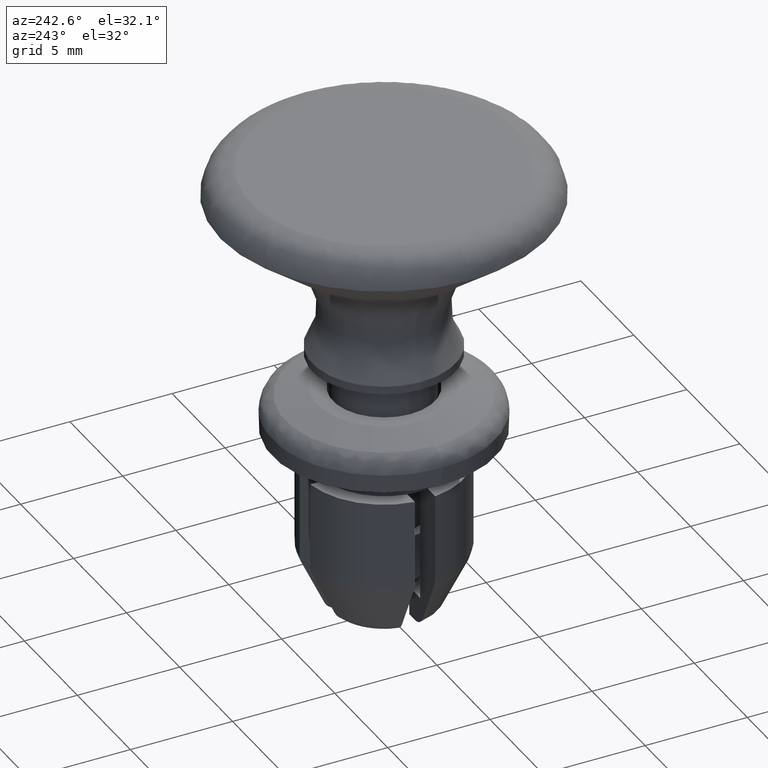
[diagram: clean part render]
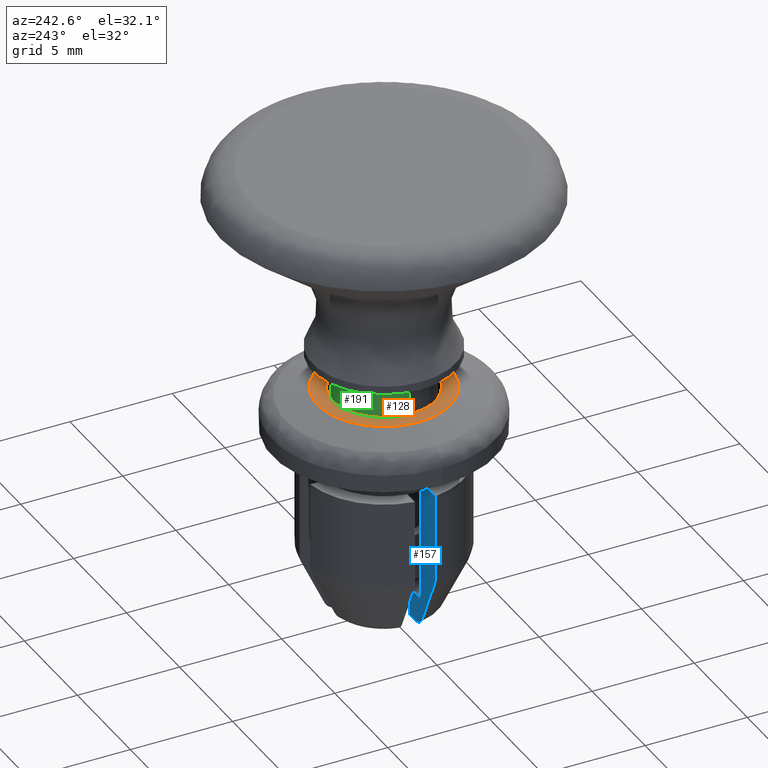
[diagram: same view with three faces highlighted in distinct colors, each labeled with its STEP entity id]
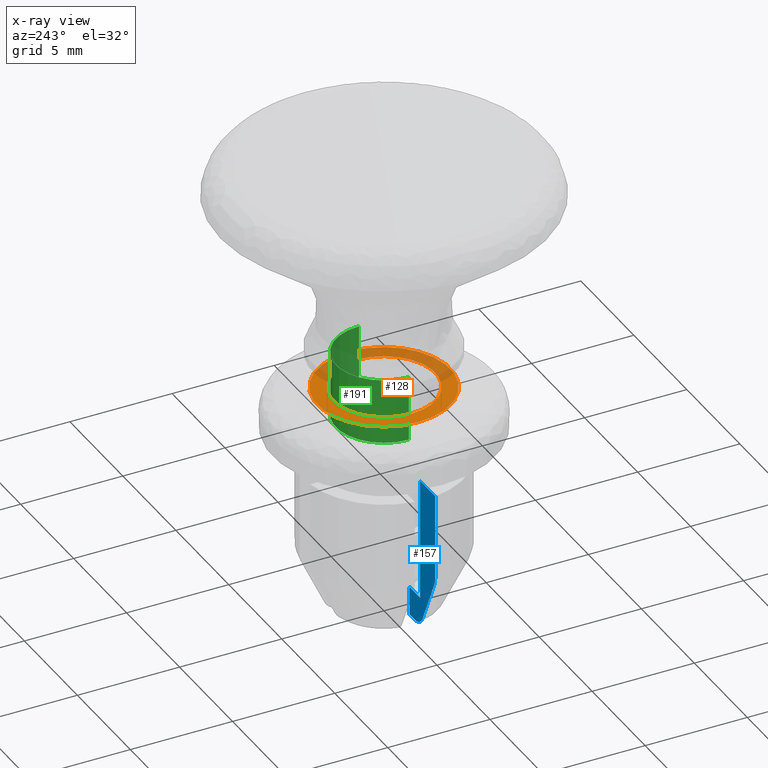
[diagram: x-ray of the same camera — body ghosted, the three highlighted faces saturated]
A machine part, auxiliary view with three faces highlighted in distinct colors.
The next image is the same camera in x-ray (body ghosted, the three faces saturated) — at least one of them is partly hidden behind the body in this view.
Their STEP definitions:

[orange] entity #128 — the highlighted planar face has unit normal (0, 0, 1).
#128=ADVANCED_FACE('',(#354,#355),#353,.T.);
#353=PLANE('',#1107);
#354=FACE_OUTER_BOUND('',#1108,.T.);
#355=FACE_BOUND('',#1109,.T.);
#1104=CARTESIAN_POINT('',(-4.22500000000E+00,-6.75499814952E+00,0.00000000000E+00));
#1105=DIRECTION('',(0.00000000000E+00,0.00000000000E+00,1.00000000000E+00));
#1106=DIRECTION('',(1.00000000000E+00,0.00000000000E+00,0.00000000000E+00));
#1107=AXIS2_PLACEMENT_3D('',#1104,#1105,#1106);
#1108=EDGE_LOOP('',(#1750,#1751));
#1109=EDGE_LOOP('',(#1752,#1753));
#1750=ORIENTED_EDGE('',*,*,#2131,.F.);
#1751=ORIENTED_EDGE('',*,*,#2132,.F.);
#1752=ORIENTED_EDGE('',*,*,#2133,.F.);
#1753=ORIENTED_EDGE('',*,*,#2134,.F.);
#2131=EDGE_CURVE('',#2789,#2790,#2791,.T.);
#2132=EDGE_CURVE('',#2790,#2789,#2797,.T.);
#2133=EDGE_CURVE('',#2803,#2804,#2805,.T.);
#2134=EDGE_CURVE('',#2804,#2803,#2811,.T.);
#2789=VERTEX_POINT('',#3926);
#2790=VERTEX_POINT('',#3927);
#2791=CIRCLE('',#3931,3.25000000000E+00);
#2797=CIRCLE('',#3935,3.25000000000E+00);
#2803=VERTEX_POINT('',#3936);
#2804=VERTEX_POINT('',#3937);
#2805=CIRCLE('',#3941,2.50000000000E+00);
#2811=CIRCLE('',#3945,2.50000000000E+00);
#3926=CARTESIAN_POINT('',(3.25000000000E+00,1.48029736617E-16,0.00000000000E+00));
#3927=CARTESIAN_POINT('',(-3.25000000000E+00,0.00000000000E+00,0.00000000000E+00));
#3928=CARTESIAN_POINT('',(0.00000000000E+00,0.00000000000E+00,0.00000000000E+00));
#3929=DIRECTION('',(-0.00000000000E+00,0.00000000000E+00,-1.00000000000E+00));
#3930=DIRECTION('',(-1.00000000000E+00,-1.22460635382E-16,0.00000000000E+00));
#3931=AXIS2_PLACEMENT_3D('',#3928,#3929,#3930);
#3932=CARTESIAN_POINT('',(0.00000000000E+00,0.00000000000E+00,0.00000000000E+00));
#3933=DIRECTION('',(-0.00000000000E+00,0.00000000000E+00,-1.00000000000E+00));
#3934=DIRECTION('',(-1.00000000000E+00,-1.22460635382E-16,0.00000000000E+00));
#3935=AXIS2_PLACEMENT_3D('',#3932,#3933,#3934);
#3936=CARTESIAN_POINT('',(2.50000000000E+00,2.96059473233E-16,0.00000000000E+00));
#3937=CARTESIAN_POINT('',(-2.50000000000E+00,0.00000000000E+00,0.00000000000E+00));
#3938=CARTESIAN_POINT('',(0.00000000000E+00,0.00000000000E+00,0.00000000000E+00));
#3939=DIRECTION('',(0.00000000000E+00,0.00000000000E+00,1.00000000000E+00));
#3940=DIRECTION('',(-1.00000000000E+00,-1.22460635382E-16,0.00000000000E+00));
#3941=AXIS2_PLACEMENT_3D('',#3938,#3939,#3940);
#3942=CARTESIAN_POINT('',(0.00000000000E+00,0.00000000000E+00,0.00000000000E+00));
#3943=DIRECTION('',(0.00000000000E+00,0.00000000000E+00,1.00000000000E+00));
#3944=DIRECTION('',(-1.00000000000E+00,-1.22460635382E-16,0.00000000000E+00));
#3945=AXIS2_PLACEMENT_3D('',#3942,#3943,#3944);

[blue] entity #157 — the highlighted planar face has unit normal (0, 1, 0).
#157=ADVANCED_FACE('',(#646),#645,.T.);
#645=PLANE('',#1310);
#646=FACE_OUTER_BOUND('',#1311,.T.);
#1307=CARTESIAN_POINT('',(-4.11317615704E+00,-5.00000000000E-01,-1.17403300002E+01));
#1308=DIRECTION('',(0.00000000000E+00,1.00000000000E+00,0.00000000000E+00));
#1309=DIRECTION('',(0.00000000000E+00,0.00000000000E+00,1.00000000000E+00));
#1310=AXIS2_PLACEMENT_3D('',#1307,#1308,#1309);
#1311=EDGE_LOOP('',(#1882,#1883,#1884,#1885,#1886,#1887,#1888,#1889,#1890,#1891));
#1882=ORIENTED_EDGE('',*,*,#2187,.F.);
#1883=ORIENTED_EDGE('',*,*,#2144,.T.);
#1884=ORIENTED_EDGE('',*,*,#2115,.F.);
#1885=ORIENTED_EDGE('',*,*,#2165,.T.);
#1886=ORIENTED_EDGE('',*,*,#2064,.F.);
#1887=ORIENTED_EDGE('',*,*,#2178,.F.);
#1888=ORIENTED_EDGE('',*,*,#2182,.F.);
#1889=ORIENTED_EDGE('',*,*,#2120,.T.);
#1890=ORIENTED_EDGE('',*,*,#2155,.F.);
#1891=ORIENTED_EDGE('',*,*,#2158,.F.);
#2064=EDGE_CURVE('',#2327,#2320,#2334,.T.);
#2115=EDGE_CURVE('',#2684,#2685,#2686,.T.);
#2120=EDGE_CURVE('',#2704,#2711,#2718,.T.);
#2144=EDGE_CURVE('',#2877,#2685,#2878,.T.);
#2155=EDGE_CURVE('',#2944,#2711,#2951,.T.);
#2158=EDGE_CURVE('',#2964,#2944,#2971,.T.);
#2165=EDGE_CURVE('',#2684,#2320,#3014,.T.);
#2178=EDGE_CURVE('',#3090,#2327,#3097,.T.);
#2182=EDGE_CURVE('',#2704,#3090,#3122,.T.);
#2187=EDGE_CURVE('',#2877,#2964,#3152,.T.);
#2320=VERTEX_POINT('',#3609);
#2327=VERTEX_POINT('',#3614);
#2334=(BOUNDED_CURVE() B_SPLINE_CURVE(3,(#3619,#3620,#3621,#3622,#3623,#3624),.UNSPECIFIED.,.F.,.F.) B_SPLINE_CURVE_WITH_KNOTS((4,2,4),(4.53704245333E-03,4.96659459827E-03,5.39612859432E-03),.UNSPECIFIED.) CURVE() GEOMETRIC_REPRESENTATION_ITEM() RATIONAL_B_SPLINE_CURVE((1.00000000000E+00,1.00000000000E+00,1.00000000000E+00,1.00000000000E+00,1.00000000000E+00,1.00000000000E+00)) REPRESENTATION_ITEM('') );
#2684=VERTEX_POINT('',#3855);
#2685=VERTEX_POINT('',#3856);
#2686=LINE('',#3857,#3858);
#2704=VERTEX_POINT('',#3868);
#2711=VERTEX_POINT('',#3873);
#2718=LINE('',#3878,#3879);
#2877=VERTEX_POINT('',#3986);
#2878=LINE('',#3987,#3988);
#2944=VERTEX_POINT('',#4030);
#2951=LINE('',#4035,#4036);
#2964=VERTEX_POINT('',#4043);
#2971=LINE('',#4048,#4049);
#3014=LINE('',#4074,#4075);
#3090=VERTEX_POINT('',#4127);
#3097=(BOUNDED_CURVE() B_SPLINE_CURVE(3,(#4132,#4133,#4134,#4135),.UNSPECIFIED.,.F.,.F.) B_SPLINE_CURVE_WITH_KNOTS((4,4),(3.02675948293E-03,5.68662966127E-03),.UNSPECIFIED.) CURVE() GEOMETRIC_REPRESENTATION_ITEM() RATIONAL_B_SPLINE_CURVE((1.00000000000E+00,1.00000000000E+00,1.00000000000E+00,1.00000000000E+00)) REPRESENTATION_ITEM('') );
#3122=(BOUNDED_CURVE() B_SPLINE_CURVE(3,(#4149,#4150,#4151,#4152,#4153,#4154),.UNSPECIFIED.,.F.,.F.) B_SPLINE_CURVE_WITH_KNOTS((4,2,4),(4.45689285409E-03,4.62552359386E-03,4.79415433363E-03),.UNSPECIFIED.) CURVE() GEOMETRIC_REPRESENTATION_ITEM() RATIONAL_B_SPLINE_CURVE((1.00000000000E+00,1.00000000000E+00,1.00000000000E+00,1.00000000000E+00,1.00000000000E+00,1.00000000000E+00)) REPRESENTATION_ITEM('') );
#3152=LINE('',#4171,#4172);
#3609=CARTESIAN_POINT('',(-1.95950752863E+00,-5.00004366197E-01,-1.10003000000E+01));
#3614=CARTESIAN_POINT('',(-2.65533500711E+00,-5.00000000000E-01,-1.05674000000E+01));
#3619=CARTESIAN_POINT('',(-2.65533500711E+00,-5.00000000000E-01,-1.05674000000E+01));
#3620=CARTESIAN_POINT('',(-2.59380589463E+00,-5.00000000000E-01,-1.06969771391E+01));
#3621=CARTESIAN_POINT('',(-2.49239977132E+00,-5.00000000000E-01,-1.08093185071E+01));
#3622=CARTESIAN_POINT('',(-2.24780289933E+00,-5.00000000000E-01,-1.09601820029E+01));
#3623=CARTESIAN_POINT('',(-2.10280856637E+00,-5.00000000000E-01,-1.10002966106E+01));
#3624=CARTESIAN_POINT('',(-1.95950752863E+00,-5.00000000000E-01,-1.10003000002E+01));
#3855=CARTESIAN_POINT('',(-1.41421356237E+00,-5.00000000000E-01,-1.10003000000E+01));
#3856=CARTESIAN_POINT('',(-1.41421356237E+00,-5.00000000000E-01,-9.60030000000E+00));
#3857=CARTESIAN_POINT('',(-1.41421356237E+00,-5.00000000000E-01,-1.10003000000E+01));
#3858=VECTOR('',#3859,1.40000000000E+00);
#3859=DIRECTION('',(0.00000000000E+00,0.00000000000E+00,1.00000000000E+00));
#3868=CARTESIAN_POINT('',(-3.86781592116E+00,-5.00000000000E-01,-7.83400000000E+00));
#3873=CARTESIAN_POINT('',(-3.86781592116E+00,-5.00000000000E-01,-3.60000000000E+00));
#3878=CARTESIAN_POINT('',(-3.86781592116E+00,-5.00000000000E-01,-7.83400000000E+00));
#3879=VECTOR('',#3880,4.23400000000E+00);
#3880=DIRECTION('',(0.00000000000E+00,0.00000000000E+00,1.00000000000E+00));
#3986=CARTESIAN_POINT('',(-2.44948974278E+00,-5.00000000000E-01,-9.60030000000E+00));
#3987=CARTESIAN_POINT('',(-2.44948974278E+00,-5.00000000000E-01,-9.60030000000E+00));
#3988=VECTOR('',#3989,1.03527618041E+00);
#3989=DIRECTION('',(1.00000000000E+00,0.00000000000E+00,0.00000000000E+00));
#4030=CARTESIAN_POINT('',(-3.16069612586E+00,-5.00000000000E-01,-3.60000000000E+00));
#4035=CARTESIAN_POINT('',(-3.16069612586E+00,-5.00000000000E-01,-3.60000000000E+00));
#4036=VECTOR('',#4037,7.07119795307E-01);
#4037=DIRECTION('',(-1.00000000000E+00,0.00000000000E+00,0.00000000000E+00));
#4043=CARTESIAN_POINT('',(-2.44948974278E+00,-5.00000000000E-01,-3.60000000000E+00));
#4048=CARTESIAN_POINT('',(-2.44948974278E+00,-5.00000000000E-01,-3.60000000000E+00));
#4049=VECTOR('',#4050,7.11206383073E-01);
#4050=DIRECTION('',(-1.00000000000E+00,0.00000000000E+00,0.00000000000E+00));
#4074=CARTESIAN_POINT('',(-1.41421356237E+00,-5.00000000000E-01,-1.10003000000E+01));
#4075=VECTOR('',#4076,5.45293966259E-01);
#4076=DIRECTION('',(-1.00000000000E+00,0.00000000000E+00,0.00000000000E+00));
#4127=CARTESIAN_POINT('',(-3.79146062763E+00,-5.00000000000E-01,-8.16238480092E+00));
#4132=CARTESIAN_POINT('',(-3.79146062763E+00,-5.00000000000E-01,-8.16238480092E+00));
#4133=CARTESIAN_POINT('',(-3.41387554992E+00,-5.00000000000E-01,-8.96458841921E+00));
#4134=CARTESIAN_POINT('',(-3.03564167719E+00,-5.00000000000E-01,-9.76649375746E+00));
#4135=CARTESIAN_POINT('',(-2.65533500711E+00,-5.00000000000E-01,-1.05674000000E+01));
#4149=CARTESIAN_POINT('',(-3.86781592116E+00,-5.00000000000E-01,-7.83400000000E+00));
#4150=CARTESIAN_POINT('',(-3.86781592116E+00,-5.00000000000E-01,-7.89022395838E+00));
#4151=CARTESIAN_POINT('',(-3.86134449724E+00,-5.00000000000E-01,-7.94715114384E+00));
#4152=CARTESIAN_POINT('',(-3.83565703050E+00,-5.00000000000E-01,-8.05769033458E+00));
#4153=CARTESIAN_POINT('',(-3.81630516403E+00,-5.00000000000E-01,-8.11180828695E+00));
#4154=CARTESIAN_POINT('',(-3.79146062763E+00,-5.00000000000E-01,-8.16238480092E+00));
#4171=CARTESIAN_POINT('',(-2.44948974278E+00,-5.00000000000E-01,-9.60030000000E+00));
#4172=VECTOR('',#4173,6.00030000000E+00);
#4173=DIRECTION('',(0.00000000000E+00,0.00000000000E+00,1.00000000000E+00));

[green] entity #191 — the highlighted cylindrical surface (partial cylindrical patch) has radius 2.35 mm, axis along (0, 0, 1).
#191=ADVANCED_FACE('',(#989),#988,.T.);
#988=CYLINDRICAL_SURFACE('',#1649,2.35000000000E+00);
#989=FACE_OUTER_BOUND('',#1650,.T.);
#1646=CARTESIAN_POINT('',(0.00000000000E+00,0.00000000000E+00,0.00000000000E+00));
#1647=DIRECTION('',(-0.00000000000E+00,-0.00000000000E+00,1.00000000000E+00));
#1648=DIRECTION('',(1.00000000000E+00,-0.00000000000E+00,-0.00000000000E+00));
#1649=AXIS2_PLACEMENT_3D('',#1646,#1647,#1648);
#1650=EDGE_LOOP('',(#2044,#2045,#2046,#2047));
#2044=ORIENTED_EDGE('',*,*,#2217,.T.);
#2045=ORIENTED_EDGE('',*,*,#2248,.F.);
#2046=ORIENTED_EDGE('',*,*,#2233,.F.);
#2047=ORIENTED_EDGE('',*,*,#2249,.T.);
#2217=EDGE_CURVE('',#3345,#3344,#3352,.T.);
#2233=EDGE_CURVE('',#3435,#3434,#3454,.T.);
#2248=EDGE_CURVE('',#3434,#3344,#3550,.T.);
#2249=EDGE_CURVE('',#3435,#3345,#3556,.T.);
#3344=VERTEX_POINT('',#4286);
#3345=VERTEX_POINT('',#4287);
#3352=CIRCLE('',#4295,2.35000000000E+00);
#3434=VERTEX_POINT('',#4332);
#3435=VERTEX_POINT('',#4333);
#3454=CIRCLE('',#4345,2.35000000000E+00);
#3550=(BOUNDED_CURVE() B_SPLINE_CURVE(1,(#4398,#4399),.UNSPECIFIED.,.F.,.F.) B_SPLINE_CURVE_WITH_KNOTS((2,2),(8.33333233997E-02,9.16666663280E-01),.UNSPECIFIED.) CURVE() GEOMETRIC_REPRESENTATION_ITEM() RATIONAL_B_SPLINE_CURVE((1.00000000000E+00,1.00000000000E+00)) REPRESENTATION_ITEM('') );
#3556=(BOUNDED_CURVE() B_SPLINE_CURVE(1,(#4400,#4401),.UNSPECIFIED.,.F.,.F.) B_SPLINE_CURVE_WITH_KNOTS((2,2),(8.33333333333E-02,9.16666666667E-01),.UNSPECIFIED.) CURVE() GEOMETRIC_REPRESENTATION_ITEM() RATIONAL_B_SPLINE_CURVE((7.50000000000E-01,7.50000000000E-01)) REPRESENTATION_ITEM('') );
#4286=CARTESIAN_POINT('',(2.35000000000E+00,0.00000000000E+00,-9.50000000000E+00));
#4287=CARTESIAN_POINT('',(-2.35000000000E+00,0.00000000000E+00,-9.50000000000E+00));
#4292=CARTESIAN_POINT('',(0.00000000000E+00,0.00000000000E+00,-9.50000000000E+00));
#4293=DIRECTION('',(-0.00000000000E+00,0.00000000000E+00,-1.00000000000E+00));
#4294=DIRECTION('',(-1.00000000000E+00,-1.22460635382E-16,0.00000000000E+00));
#4295=AXIS2_PLACEMENT_3D('',#4292,#4293,#4294);
#4332=CARTESIAN_POINT('',(2.35000000000E+00,0.00000000000E+00,-1.27000000000E+01));
#4333=CARTESIAN_POINT('',(-2.35000000000E+00,0.00000000000E+00,-1.27000000000E+01));
#4342=CARTESIAN_POINT('',(0.00000000000E+00,0.00000000000E+00,-1.27000000000E+01));
#4343=DIRECTION('',(-0.00000000000E+00,0.00000000000E+00,-1.00000000000E+00));
#4344=DIRECTION('',(-1.00000000000E+00,-1.22460635382E-16,0.00000000000E+00));
#4345=AXIS2_PLACEMENT_3D('',#4342,#4343,#4344);
#4398=CARTESIAN_POINT('',(2.35000000000E+00,0.00000000000E+00,-1.27000000381E+01));
#4399=CARTESIAN_POINT('',(2.35000000000E+00,0.00000000000E+00,-9.50000001301E+00));
#4400=CARTESIAN_POINT('',(-2.35000000000E+00,-2.96059473233E-16,-1.27000000000E+01));
#4401=CARTESIAN_POINT('',(-2.35000000000E+00,-2.96059473233E-16,-9.50000000000E+00));